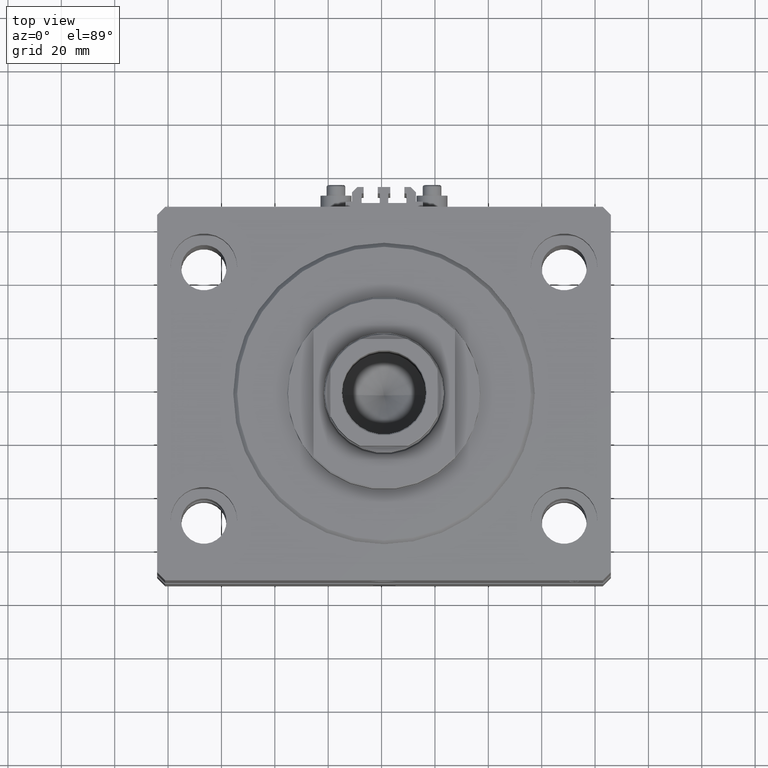
[diagram: clean part render]
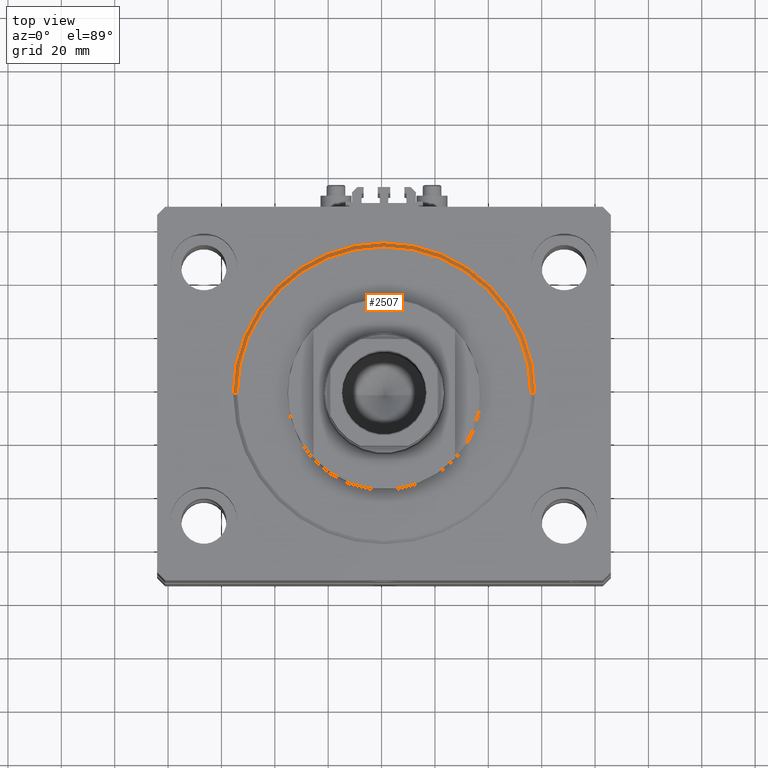
[diagram: same view with one face highlighted and labeled with its STEP entity id]
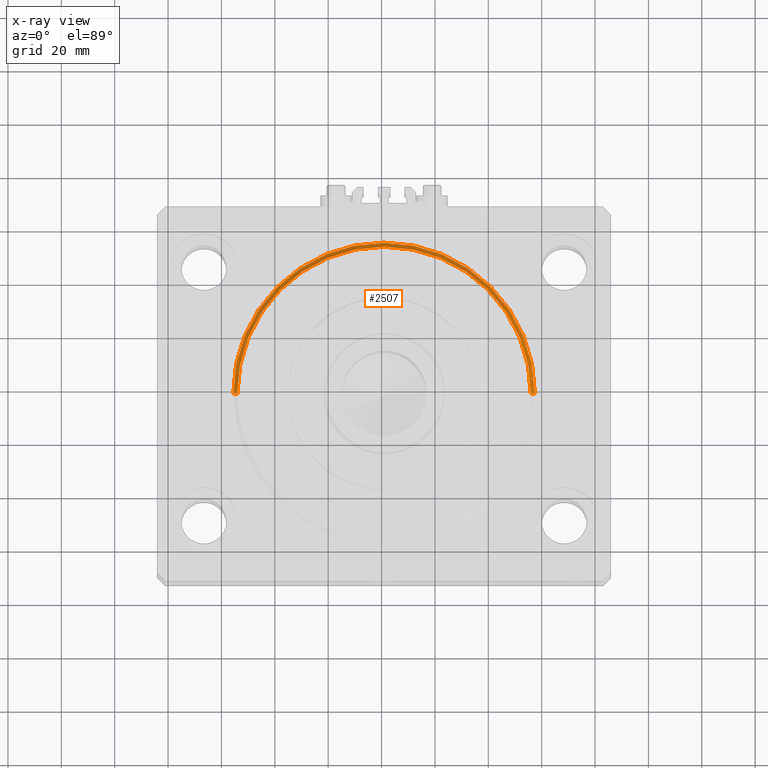
[diagram: x-ray of the same camera — body ghosted, the highlighted face saturated]
A machine part, top view. The second image highlights one B-rep face of the part: STEP entity #2507.
The next image is the same camera in x-ray: the body ghosted, the highlighted face saturated — about 0% of this face is hidden behind the body in this view.
In plain terms, the highlighted conical surface has half-angle 45 deg.
Its self-contained STEP definition (entity closure, byte-faithful):
#657 = CARTESIAN_POINT ( 'NONE',  ( 55.00000000000002132, 0.000000000000000000, 0.000000000000000000 ) ) ;
#1193 = DIRECTION ( 'NONE',  ( -0.000000000000000000, -0.000000000000000000, -1.000000000000000000 ) ) ;
#2507 = ADVANCED_FACE ( 'NONE', ( #27575 ), #38093, .T. ) ;
#2719 = ORIENTED_EDGE ( 'NONE', *, *, #9334, .F. ) ;
#3304 = CARTESIAN_POINT ( 'NONE',  ( 0.000000000000000000, 0.000000000000000000, 1.499999999999994449 ) ) ;
#4329 = CARTESIAN_POINT ( 'NONE',  ( 0.000000000000000000, 0.000000000000000000, 1.499999999999994449 ) ) ;
#4407 = DIRECTION ( 'NONE',  ( 1.000000000000000000, 0.000000000000000000, 0.000000000000000000 ) ) ;
#4505 = VECTOR ( 'NONE', #19820, 1000.000000000000000 ) ;
#4938 = ORIENTED_EDGE ( 'NONE', *, *, #48388, .T. ) ;
#5877 = VERTEX_POINT ( 'NONE', #26042 ) ;
#8211 = VECTOR ( 'NONE', #46572, 1000.000000000000000 ) ;
#9334 = EDGE_CURVE ( 'NONE', #32462, #9485, #30451, .T. ) ;
#9485 = VERTEX_POINT ( 'NONE', #47060 ) ;
#11767 = DIRECTION ( 'NONE',  ( -0.000000000000000000, -0.000000000000000000, 1.000000000000000000 ) ) ;
#13386 = CARTESIAN_POINT ( 'NONE',  ( 56.50000000000000711, 0.000000000000000000, 1.499999999999994449 ) ) ;
#17058 = EDGE_LOOP ( 'NONE', ( #43307, #4938, #2719, #39762 ) ) ;
#18878 = DIRECTION ( 'NONE',  ( -0.000000000000000000, -0.000000000000000000, 1.000000000000000000 ) ) ;
#19820 = DIRECTION ( 'NONE',  ( -0.7071067811865459074, 8.659560562354911904E-17, 0.7071067811865491270 ) ) ;
#20154 = AXIS2_PLACEMENT_3D ( 'NONE', #3304, #18878, #33988 ) ;
#22889 = DIRECTION ( 'NONE',  ( 1.000000000000000000, 0.000000000000000000, 0.000000000000000000 ) ) ;
#24029 = LINE ( 'NONE', #38182, #4505 ) ;
#25414 = AXIS2_PLACEMENT_3D ( 'NONE', #4329, #11767, #22889 ) ;
#26042 = CARTESIAN_POINT ( 'NONE',  ( -55.00000000000002132, 6.827405905246496343E-15, 0.000000000000000000 ) ) ;
#27575 = FACE_OUTER_BOUND ( 'NONE', #17058, .T. ) ;
#29990 = EDGE_CURVE ( 'NONE', #31445, #32462, #47053, .T. ) ;
#30451 = CIRCLE ( 'NONE', #20154, 56.50000000000000711 ) ;
#31139 = CARTESIAN_POINT ( 'NONE',  ( 56.50000000000000711, 6.919254415182546126E-15, 1.499999999999994449 ) ) ;
#31445 = VERTEX_POINT ( 'NONE', #657 ) ;
#31627 = CARTESIAN_POINT ( 'NONE',  ( 0.000000000000000000, 0.000000000000000000, 0.000000000000000000 ) ) ;
#32452 = EDGE_CURVE ( 'NONE', #5877, #31445, #39964, .T. ) ;
#32462 = VERTEX_POINT ( 'NONE', #31139 ) ;
#33988 = DIRECTION ( 'NONE',  ( 1.000000000000000000, 0.000000000000000000, 0.000000000000000000 ) ) ;
#38093 = CONICAL_SURFACE ( 'NONE', #25414, 56.50000000000000711, 0.7853981633974460586 ) ;
#38182 = CARTESIAN_POINT ( 'NONE',  ( -56.50000000000000711, 6.919254415182546126E-15, 1.499999999999994449 ) ) ;
#39762 = ORIENTED_EDGE ( 'NONE', *, *, #29990, .F. ) ;
#39964 = CIRCLE ( 'NONE', #42321, 55.00000000000002132 ) ;
#42321 = AXIS2_PLACEMENT_3D ( 'NONE', #31627, #1193, #4407 ) ;
#43307 = ORIENTED_EDGE ( 'NONE', *, *, #32452, .F. ) ;
#46572 = DIRECTION ( 'NONE',  ( 0.7071067811865459074, 0.000000000000000000, 0.7071067811865491270 ) ) ;
#47053 = LINE ( 'NONE', #13386, #8211 ) ;
#47060 = CARTESIAN_POINT ( 'NONE',  ( -56.50000000000000711, 0.000000000000000000, 1.499999999999994449 ) ) ;
#48388 = EDGE_CURVE ( 'NONE', #5877, #9485, #24029, .T. ) ;